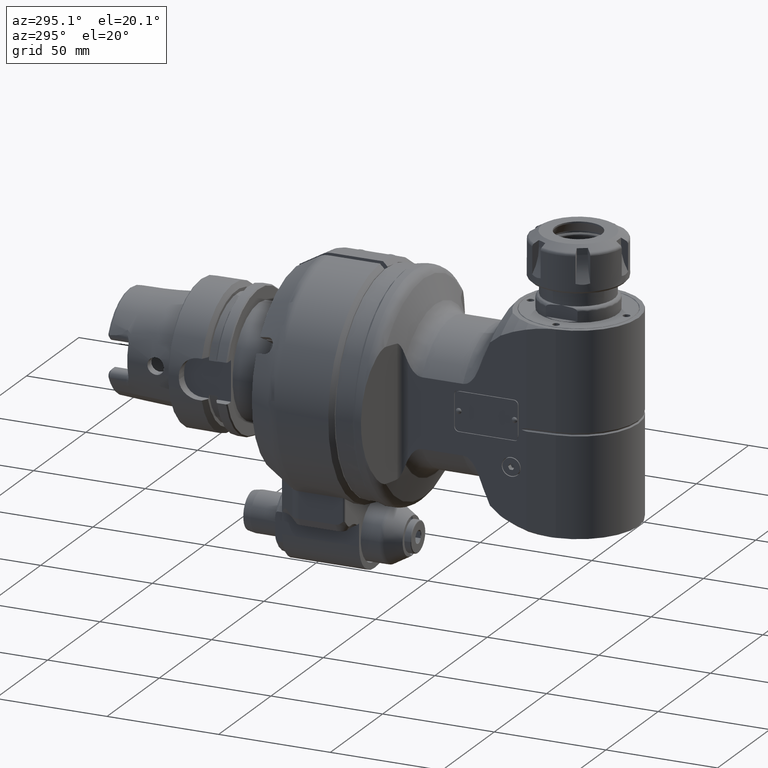
[diagram: clean part render]
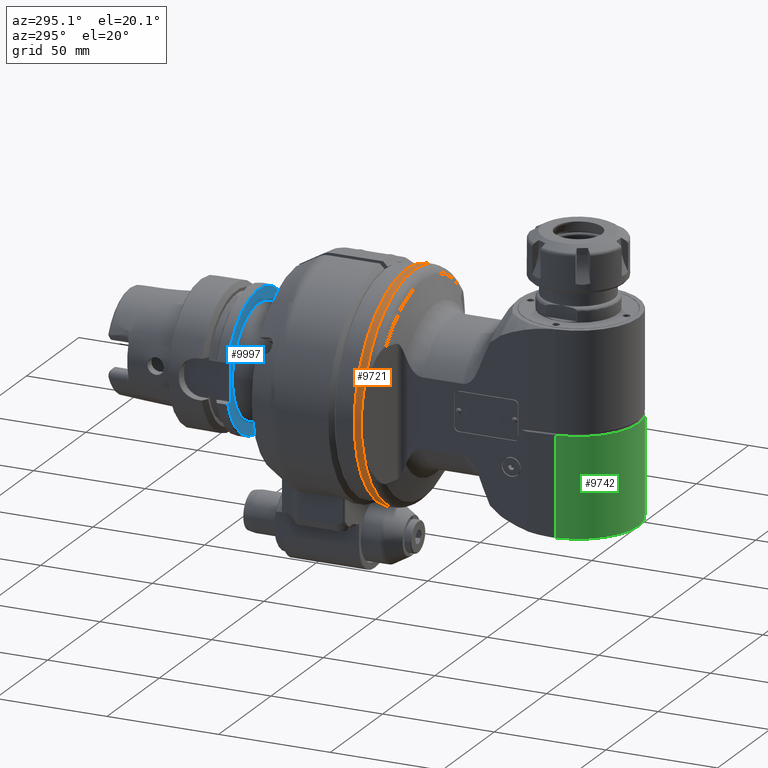
[diagram: same view with three faces highlighted in distinct colors, each labeled with its STEP entity id]
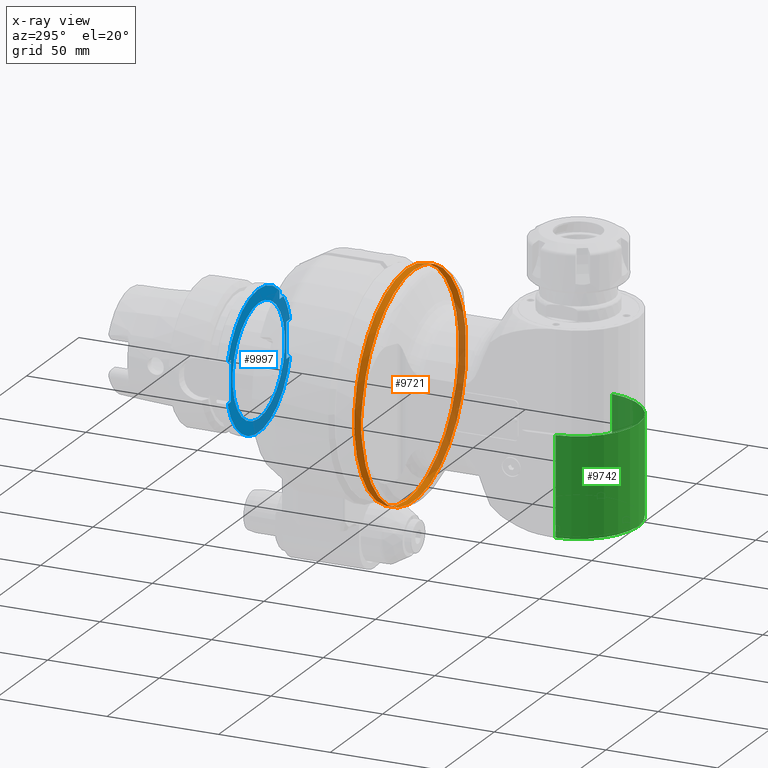
[diagram: x-ray of the same camera — body ghosted, the three highlighted faces saturated]
A machine part, auxiliary view with three faces highlighted in distinct colors.
The next image is the same camera in x-ray (body ghosted, the three faces saturated) — at least one of them is partly hidden behind the body in this view.
Their STEP definitions:

[orange] entity #9721 — the highlighted cylindrical surface (bore or boss wall) has radius 50 mm, axis along (0, 1, 0).
#67=ELLIPSE('',#10566,53.2088886237962,50.);
#70=ELLIPSE('',#10572,53.2088886237962,50.);
#681=CYLINDRICAL_SURFACE('',#10575,50.);
#858=CIRCLE('',#10574,50.);
#859=CIRCLE('',#10576,50.);
#860=CIRCLE('',#10577,50.);
#861=CIRCLE('',#10578,50.);
#862=CIRCLE('',#10579,50.);
#1318=FACE_OUTER_BOUND('',#1900,.T.);
#1900=EDGE_LOOP('',(#6446,#6447,#6448,#6449,#6450,#6451,#6452,#6453,#6454));
#2549=LINE('',#15085,#3176);
#3176=VECTOR('',#11797,50.);
#3873=VERTEX_POINT('',#14992);
#3874=VERTEX_POINT('',#15011);
#3877=VERTEX_POINT('',#15038);
#3878=VERTEX_POINT('',#15057);
#3879=VERTEX_POINT('',#15080);
#3880=VERTEX_POINT('',#15081);
#3881=VERTEX_POINT('',#15084);
#4873=EDGE_CURVE('',#3873,#3874,#67,.T.);
#4879=EDGE_CURVE('',#3877,#3878,#70,.T.);
#4881=EDGE_CURVE('',#3878,#3873,#858,.T.);
#4882=EDGE_CURVE('',#3879,#3880,#859,.T.);
#4883=EDGE_CURVE('',#3880,#3879,#860,.T.);
#4884=EDGE_CURVE('',#3880,#3881,#2549,.T.);
#4885=EDGE_CURVE('',#3874,#3881,#861,.T.);
#4886=EDGE_CURVE('',#3881,#3877,#862,.T.);
#6446=ORIENTED_EDGE('',*,*,#4882,.F.);
#6447=ORIENTED_EDGE('',*,*,#4883,.F.);
#6448=ORIENTED_EDGE('',*,*,#4884,.T.);
#6449=ORIENTED_EDGE('',*,*,#4885,.F.);
#6450=ORIENTED_EDGE('',*,*,#4873,.F.);
#6451=ORIENTED_EDGE('',*,*,#4881,.F.);
#6452=ORIENTED_EDGE('',*,*,#4879,.F.);
#6453=ORIENTED_EDGE('',*,*,#4886,.F.);
#6454=ORIENTED_EDGE('',*,*,#4884,.F.);
#9721=ADVANCED_FACE('',(#1318),#681,.T.);
#10566=AXIS2_PLACEMENT_3D('',#15012,#11773,#11774);
#10572=AXIS2_PLACEMENT_3D('',#15058,#11785,#11786);
#10574=AXIS2_PLACEMENT_3D('',#15078,#11789,#11790);
#10575=AXIS2_PLACEMENT_3D('',#15079,#11791,#11792);
#10576=AXIS2_PLACEMENT_3D('',#15082,#11793,#11794);
#10577=AXIS2_PLACEMENT_3D('',#15083,#11795,#11796);
#10578=AXIS2_PLACEMENT_3D('',#15086,#11798,#11799);
#10579=AXIS2_PLACEMENT_3D('',#15087,#11800,#11801);
#11773=DIRECTION('center_axis',(0.939692620785897,0.,0.342020143325699));
#11774=DIRECTION('ref_axis',(0.342020143325699,0.,-0.939692620785897));
#11785=DIRECTION('center_axis',(0.939692620785897,0.,-0.342020143325699));
#11786=DIRECTION('ref_axis',(-0.342020143325699,0.,-0.939692620785897));
#11789=DIRECTION('center_axis',(1.,0.,0.));
#11790=DIRECTION('ref_axis',(0.,0.187279909699701,-0.982306589320703));
#11791=DIRECTION('center_axis',(-1.,0.,0.));
#11792=DIRECTION('ref_axis',(0.,1.,0.));
#11793=DIRECTION('center_axis',(-1.,0.,0.));
#11794=DIRECTION('ref_axis',(0.,1.,0.));
#11795=DIRECTION('center_axis',(-1.,0.,0.));
#11796=DIRECTION('ref_axis',(0.,1.,0.));
#11797=DIRECTION('',(1.,0.,0.));
#11798=DIRECTION('center_axis',(1.,0.,0.));
#11799=DIRECTION('ref_axis',(0.,-0.1872799096992,0.982306589320798));
#11800=DIRECTION('center_axis',(1.,0.,0.));
#11801=DIRECTION('ref_axis',(0.,-0.1872799096992,0.982306589320798));
#14992=CARTESIAN_POINT('',(16.31464863572,9.363995485014,49.11532946603));
#15011=CARTESIAN_POINT('',(16.31464863573,-9.363995485039,49.11532946603));
#15012=CARTESIAN_POINT('Origin',(34.1911666075347,0.,0.));
#15038=CARTESIAN_POINT('',(16.31464863572,-9.363995484987,-49.11532946603));
#15057=CARTESIAN_POINT('',(16.31464863573,9.36399548502,-49.11532946603));
#15058=CARTESIAN_POINT('Origin',(34.1911666075347,0.,0.));
#15078=CARTESIAN_POINT('Origin',(16.31464863572,0.,0.));
#15079=CARTESIAN_POINT('Origin',(54.606251,0.,0.));
#15080=CARTESIAN_POINT('',(13.,50.,0.));
#15081=CARTESIAN_POINT('',(13.,-50.,6.12323399573677E-15));
#15082=CARTESIAN_POINT('Origin',(13.,0.,0.));
#15083=CARTESIAN_POINT('Origin',(13.,0.,0.));
#15084=CARTESIAN_POINT('',(16.3146486357221,-50.,6.12323399573677E-15));
#15085=CARTESIAN_POINT('',(54.606251,-50.,6.12323399573677E-15));
#15086=CARTESIAN_POINT('Origin',(16.31464863572,0.,0.));
#15087=CARTESIAN_POINT('Origin',(16.31464863572,0.,0.));

[blue] entity #9997 — the highlighted planar face has unit normal (-0, 1, -0).
#300=FACE_BOUND('',#2217,.T.);
#1066=CIRCLE('',#11079,25.);
#1067=CIRCLE('',#11081,31.);
#1068=CIRCLE('',#11082,31.);
#1069=CIRCLE('',#11083,31.);
#1594=FACE_OUTER_BOUND('',#2216,.T.);
#2216=EDGE_LOOP('',(#7806,#7807,#7808,#7809,#7810,#7811,#7812,#7813,#7814,
#7815,#7816));
#2217=EDGE_LOOP('',(#7817));
#2835=LINE('',#17086,#3462);
#2836=LINE('',#17088,#3463);
#2837=LINE('',#17092,#3464);
#2838=LINE('',#17094,#3465);
#2839=LINE('',#17096,#3466);
#2840=LINE('',#17100,#3467);
#2841=LINE('',#17102,#3468);
#2842=LINE('',#17103,#3469);
#3462=VECTOR('',#13091,3.685439117355);
#3463=VECTOR('',#13092,3.685439117308);
#3464=VECTOR('',#13095,3.164793948383);
#3465=VECTOR('',#13096,18.);
#3466=VECTOR('',#13097,3.164793948383);
#3467=VECTOR('',#13100,3.449958263744);
#3468=VECTOR('',#13101,16.);
#3469=VECTOR('',#13102,3.449958263744);
#4297=VERTEX_POINT('',#17078);
#4298=VERTEX_POINT('',#17082);
#4299=VERTEX_POINT('',#17083);
#4300=VERTEX_POINT('',#17085);
#4301=VERTEX_POINT('',#17087);
#4302=VERTEX_POINT('',#17089);
#4303=VERTEX_POINT('',#17091);
#4304=VERTEX_POINT('',#17093);
#4305=VERTEX_POINT('',#17095);
#4306=VERTEX_POINT('',#17097);
#4307=VERTEX_POINT('',#17099);
#4308=VERTEX_POINT('',#17101);
#5533=EDGE_CURVE('',#4297,#4297,#1066,.T.);
#5534=EDGE_CURVE('',#4298,#4299,#1067,.T.);
#5535=EDGE_CURVE('',#4300,#4299,#2835,.T.);
#5536=EDGE_CURVE('',#4301,#4300,#2836,.T.);
#5537=EDGE_CURVE('',#4301,#4302,#1068,.T.);
#5538=EDGE_CURVE('',#4303,#4302,#2837,.T.);
#5539=EDGE_CURVE('',#4303,#4304,#2838,.T.);
#5540=EDGE_CURVE('',#4305,#4304,#2839,.T.);
#5541=EDGE_CURVE('',#4305,#4306,#1069,.T.);
#5542=EDGE_CURVE('',#4307,#4306,#2840,.T.);
#5543=EDGE_CURVE('',#4308,#4307,#2841,.T.);
#5544=EDGE_CURVE('',#4298,#4308,#2842,.T.);
#7806=ORIENTED_EDGE('',*,*,#5534,.T.);
#7807=ORIENTED_EDGE('',*,*,#5535,.F.);
#7808=ORIENTED_EDGE('',*,*,#5536,.F.);
#7809=ORIENTED_EDGE('',*,*,#5537,.T.);
#7810=ORIENTED_EDGE('',*,*,#5538,.F.);
#7811=ORIENTED_EDGE('',*,*,#5539,.T.);
#7812=ORIENTED_EDGE('',*,*,#5540,.F.);
#7813=ORIENTED_EDGE('',*,*,#5541,.T.);
#7814=ORIENTED_EDGE('',*,*,#5542,.F.);
#7815=ORIENTED_EDGE('',*,*,#5543,.F.);
#7816=ORIENTED_EDGE('',*,*,#5544,.F.);
#7817=ORIENTED_EDGE('',*,*,#5533,.T.);
#9289=PLANE('',#11080);
#9997=ADVANCED_FACE('',(#1594,#300),#9289,.F.);
#11079=AXIS2_PLACEMENT_3D('',#17080,#13085,#13086);
#11080=AXIS2_PLACEMENT_3D('',#17081,#13087,#13088);
#11081=AXIS2_PLACEMENT_3D('',#17084,#13089,#13090);
#11082=AXIS2_PLACEMENT_3D('',#17090,#13093,#13094);
#11083=AXIS2_PLACEMENT_3D('',#17098,#13098,#13099);
#13085=DIRECTION('center_axis',(0.,0.,1.));
#13086=DIRECTION('ref_axis',(-0.322000000000014,-0.94673966854674,0.));
#13087=DIRECTION('center_axis',(0.,0.,1.));
#13088=DIRECTION('ref_axis',(1.,0.,0.));
#13089=DIRECTION('center_axis',(0.,0.,-1.));
#13090=DIRECTION('ref_axis',(0.258064516129008,0.966127685927228,0.));
#13091=DIRECTION('',(-3.057761428002E-8,1.,0.));
#13092=DIRECTION('',(-1.,3.057491415414E-8,0.));
#13093=DIRECTION('center_axis',(0.,0.,-1.));
#13094=DIRECTION('ref_axis',(0.764046405311402,0.645161290322602,0.));
#13095=DIRECTION('',(0.,-1.,0.));
#13096=DIRECTION('',(-1.,0.,0.));
#13097=DIRECTION('',(0.,1.,0.));
#13098=DIRECTION('center_axis',(0.,0.,-1.));
#13099=DIRECTION('ref_axis',(-0.290322580645197,-0.956928837044591,0.));
#13100=DIRECTION('',(0.,1.,0.));
#13101=DIRECTION('',(-1.,0.,0.));
#13102=DIRECTION('',(3.501267431222E-14,-1.,0.));
#17078=CARTESIAN_POINT('',(25.,-3.06161699786838E-15,24.995));
#17080=CARTESIAN_POINT('Origin',(0.,0.,24.995));
#17081=CARTESIAN_POINT('Origin',(0.,0.,24.995));
#17082=CARTESIAN_POINT('',(8.,29.94995826374,24.995));
#17083=CARTESIAN_POINT('',(19.9999998293526,23.6854387202825,24.9949999936376));
#17084=CARTESIAN_POINT('Origin',(0.,0.,24.995));
#17085=CARTESIAN_POINT('',(20.,20.,24.995));
#17086=CARTESIAN_POINT('',(20.,20.,24.995));
#17087=CARTESIAN_POINT('',(23.6854387202683,19.9999998293687,24.9949999936381));
#17088=CARTESIAN_POINT('',(23.68543911731,19.99999988732,24.995));
#17089=CARTESIAN_POINT('',(9.,-29.66479394838,24.995));
#17090=CARTESIAN_POINT('Origin',(0.,0.,24.995));
#17091=CARTESIAN_POINT('',(9.,-26.5,24.995));
#17092=CARTESIAN_POINT('',(9.,-26.5,24.995));
#17093=CARTESIAN_POINT('',(-9.,-26.5,24.995));
#17094=CARTESIAN_POINT('',(9.,-26.5,24.995));
#17095=CARTESIAN_POINT('',(-9.,-29.66479394838,24.995));
#17096=CARTESIAN_POINT('',(-9.,-29.66479394838,24.995));
#17097=CARTESIAN_POINT('',(-8.,29.94995826374,24.995));
#17098=CARTESIAN_POINT('Origin',(0.,0.,24.995));
#17099=CARTESIAN_POINT('',(-8.,26.5,24.995));
#17100=CARTESIAN_POINT('',(-8.,26.5,24.995));
#17101=CARTESIAN_POINT('',(8.,26.5,24.995));
#17102=CARTESIAN_POINT('',(8.,26.5,24.995));
#17103=CARTESIAN_POINT('',(8.,29.94995826374,24.995));

[green] entity #9742 — the highlighted cylindrical surface (partial cylindrical patch) has radius 27 mm, axis along (-0, 0, -1).
#686=CYLINDRICAL_SURFACE('',#10618,27.);
#835=CIRCLE('',#10522,27.);
#879=CIRCLE('',#10619,27.);
#1339=FACE_OUTER_BOUND('',#1924,.T.);
#1924=EDGE_LOOP('',(#6547,#6548,#6549,#6550));
#2535=LINE('',#14801,#3162);
#2563=LINE('',#15192,#3190);
#3162=VECTOR('',#11681,44.33431457505);
#3190=VECTOR('',#11887,44.33431457505);
#3825=VERTEX_POINT('',#14713);
#3835=VERTEX_POINT('',#14783);
#3837=VERTEX_POINT('',#14789);
#3906=VERTEX_POINT('',#15190);
#4815=EDGE_CURVE('',#3835,#3825,#835,.T.);
#4822=EDGE_CURVE('',#3837,#3825,#2535,.T.);
#4926=EDGE_CURVE('',#3835,#3906,#2563,.T.);
#4928=EDGE_CURVE('',#3837,#3906,#879,.T.);
#6547=ORIENTED_EDGE('',*,*,#4928,.F.);
#6548=ORIENTED_EDGE('',*,*,#4822,.T.);
#6549=ORIENTED_EDGE('',*,*,#4815,.F.);
#6550=ORIENTED_EDGE('',*,*,#4926,.T.);
#9742=ADVANCED_FACE('',(#1339),#686,.T.);
#10522=AXIS2_PLACEMENT_3D('',#14785,#11669,#11670);
#10618=AXIS2_PLACEMENT_3D('',#15195,#11892,#11893);
#10619=AXIS2_PLACEMENT_3D('',#15196,#11894,#11895);
#11669=DIRECTION('center_axis',(0.,1.,0.));
#11670=DIRECTION('ref_axis',(0.0871557427478227,0.,0.996194698091731));
#11681=DIRECTION('',(-2.628415704215E-14,1.,0.));
#11887=DIRECTION('',(-2.660469554266E-14,-1.,0.));
#11892=DIRECTION('center_axis',(0.,1.,0.));
#11893=DIRECTION('ref_axis',(1.,0.,-1.62414186125208E-13));
#11894=DIRECTION('center_axis',(0.,-1.,0.));
#11895=DIRECTION('ref_axis',(1.,0.,0.));
#14713=CARTESIAN_POINT('',(92.35320505418,45.,-26.89725684848));
#14783=CARTESIAN_POINT('',(92.35320505419,45.,26.89725684848));
#14785=CARTESIAN_POINT('Origin',(90.,45.,0.));
#14789=CARTESIAN_POINT('',(92.35320505419,0.6656854249493,-26.89725684848));
#14801=CARTESIAN_POINT('',(92.35320505419,0.6656854249493,-26.89725684848));
#15190=CARTESIAN_POINT('',(92.35320505419,0.6656854249492,26.89725684848));
#15192=CARTESIAN_POINT('',(92.35320505419,45.,26.89725684848));
#15195=CARTESIAN_POINT('Origin',(90.,-54.0000024,0.));
#15196=CARTESIAN_POINT('Origin',(90.,0.6656854249493,0.));